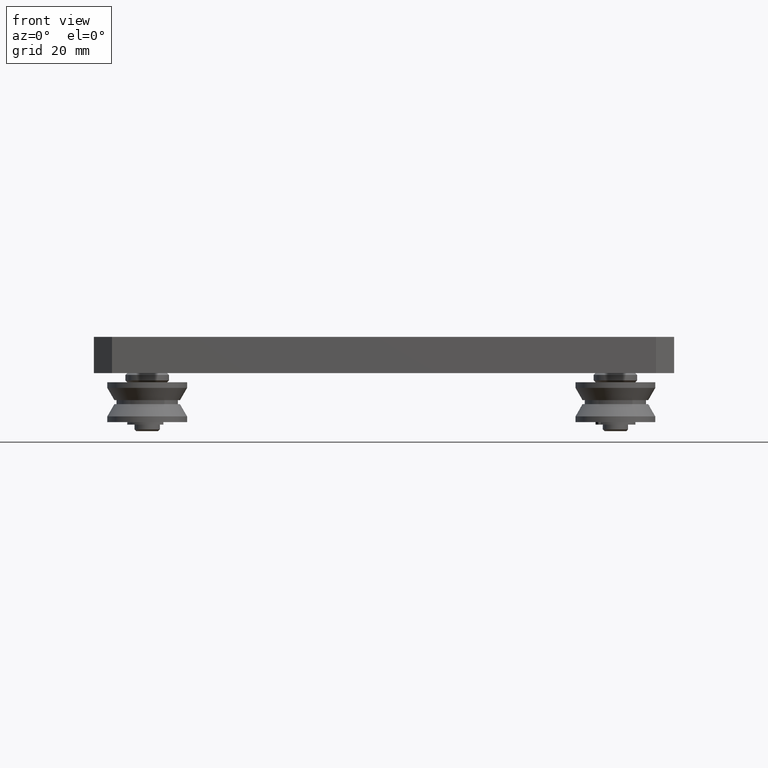
[diagram: clean part render]
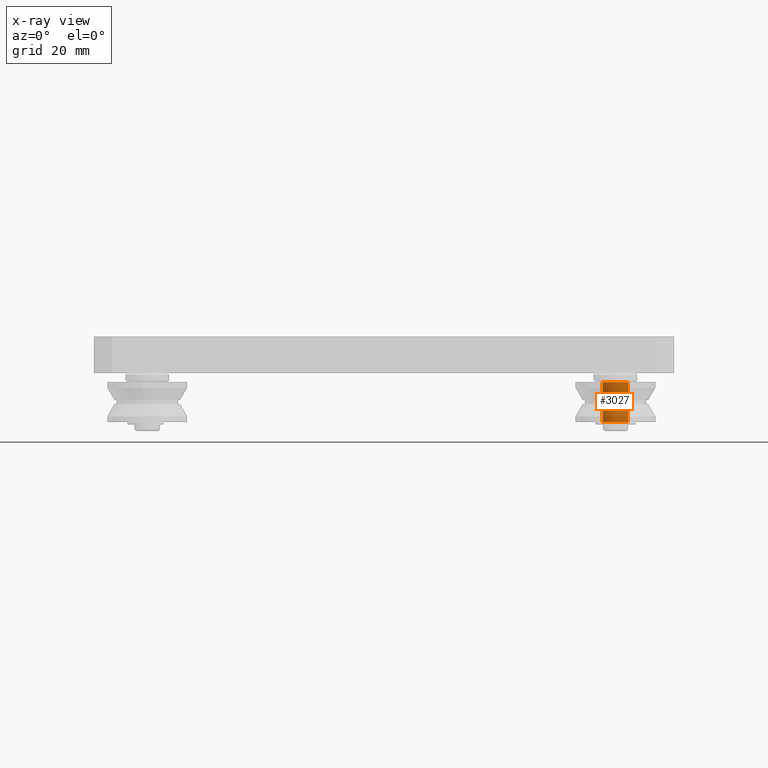
[diagram: x-ray — body ghosted, one internal face saturated and labeled with its STEP entity id]
A machine part, front view, then the same camera in x-ray: the body is ghosted and one INTERNAL B-rep face — a face not visible from any outside direction — is saturated and labeled: STEP entity #3027.
In plain terms, the highlighted cylindrical surface (bore or boss wall) has radius 3.5 mm, axis along (0, 0, 1).
Its self-contained STEP definition (entity closure, byte-faithful):
#215=CYLINDRICAL_SURFACE('',#3552,3.5);
#369=CIRCLE('',#3519,3.5);
#385=CIRCLE('',#3551,3.5);
#573=FACE_OUTER_BOUND('',#799,.T.);
#799=EDGE_LOOP('',(#2563,#2564,#2565,#2566));
#1021=LINE('',#5284,#1249);
#1249=VECTOR('',#4361,3.5);
#1473=VERTEX_POINT('',#5224);
#1489=VERTEX_POINT('',#5281);
#1832=EDGE_CURVE('',#1473,#1473,#369,.T.);
#1857=EDGE_CURVE('',#1489,#1489,#385,.T.);
#1858=EDGE_CURVE('',#1489,#1473,#1021,.T.);
#2563=ORIENTED_EDGE('',*,*,#1857,.T.);
#2564=ORIENTED_EDGE('',*,*,#1858,.T.);
#2565=ORIENTED_EDGE('',*,*,#1832,.F.);
#2566=ORIENTED_EDGE('',*,*,#1858,.F.);
#3027=ADVANCED_FACE('',(#573),#215,.F.);
#3519=AXIS2_PLACEMENT_3D('',#5225,#4284,#4285);
#3551=AXIS2_PLACEMENT_3D('',#5282,#4357,#4358);
#3552=AXIS2_PLACEMENT_3D('',#5283,#4359,#4360);
#4284=DIRECTION('center_axis',(1.,0.,0.));
#4285=DIRECTION('ref_axis',(0.,1.,0.));
#4357=DIRECTION('center_axis',(1.,0.,0.));
#4358=DIRECTION('ref_axis',(0.,1.,0.));
#4359=DIRECTION('center_axis',(1.,0.,0.));
#4360=DIRECTION('ref_axis',(0.,1.,0.));
#4361=DIRECTION('',(-1.,0.,0.));
#5224=CARTESIAN_POINT('',(-5.5,-3.5,-4.28626379701574E-16));
#5225=CARTESIAN_POINT('Origin',(-5.5,0.,0.));
#5281=CARTESIAN_POINT('',(5.5,-3.5,-4.28626379701574E-16));
#5282=CARTESIAN_POINT('Origin',(5.5,0.,0.));
#5283=CARTESIAN_POINT('Origin',(-4.44089209850063E-15,0.,0.));
#5284=CARTESIAN_POINT('',(-4.44089209850063E-15,-3.5,-4.28626379701574E-16));